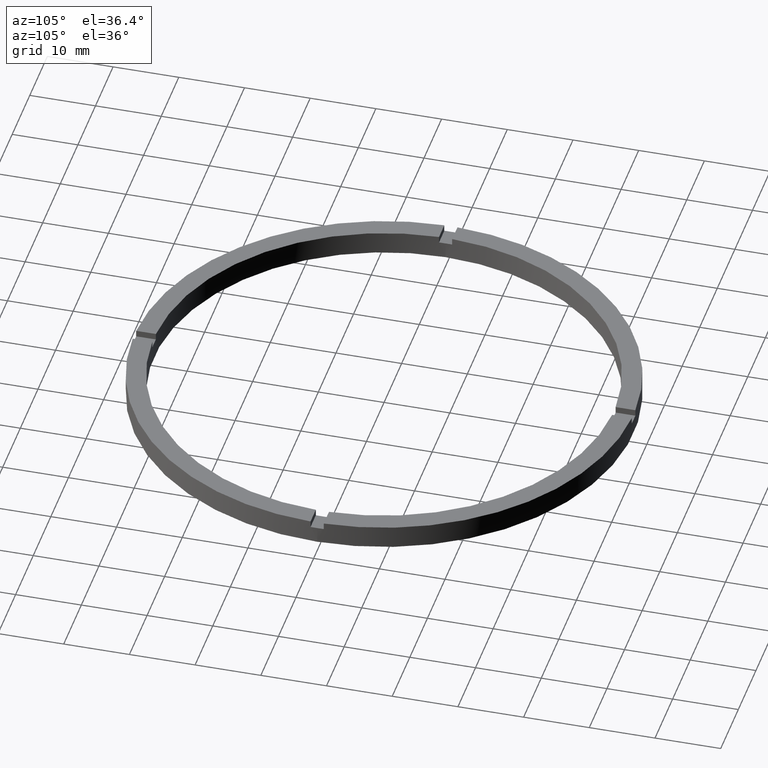
[diagram: clean part render]
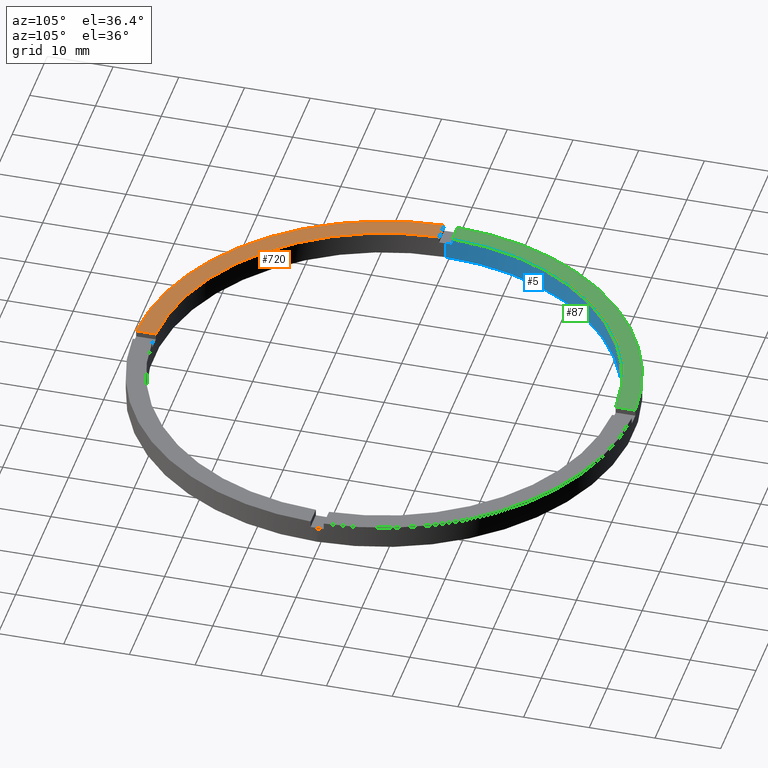
[diagram: same view with three faces highlighted in distinct colors, each labeled with its STEP entity id]
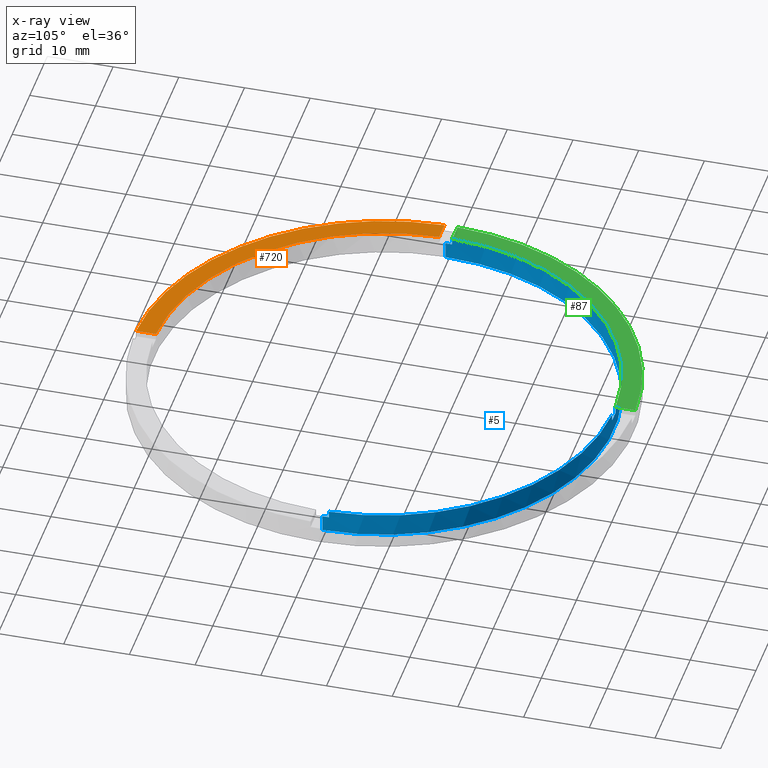
[diagram: x-ray of the same camera — body ghosted, the three highlighted faces saturated]
A machine part, auxiliary view with three faces highlighted in distinct colors.
The next image is the same camera in x-ray (body ghosted, the three faces saturated) — at least one of them is partly hidden behind the body in this view.
Their STEP definitions:

[orange] entity #720 — the highlighted planar face has unit normal (0, 0, 1).
#25 = DIRECTION ( 'NONE',  ( 1.000000000000000000, 0.000000000000000000, 0.000000000000000000 ) ) ;
#32 = DIRECTION ( 'NONE',  ( 0.000000000000000000, 0.000000000000000000, 1.000000000000000000 ) ) ;
#52 = LINE ( 'NONE', #386, #333 ) ;
#56 = CARTESIAN_POINT ( 'NONE',  ( 0.000000000000000000, 0.000000000000000000, 3.500000000000000000 ) ) ;
#83 = EDGE_CURVE ( 'NONE', #129, #465, #184, .T. ) ;
#104 = ORIENTED_EDGE ( 'NONE', *, *, #331, .F. ) ;
#118 = AXIS2_PLACEMENT_3D ( 'NONE', #771, #32, #25 ) ;
#129 = VERTEX_POINT ( 'NONE', #144 ) ;
#132 = VERTEX_POINT ( 'NONE', #296 ) ;
#138 = ORIENTED_EDGE ( 'NONE', *, *, #603, .F. ) ;
#144 = CARTESIAN_POINT ( 'NONE',  ( -34.98571136907180801, -1.000000000000027089, 3.500000000000000000 ) ) ;
#184 = CIRCLE ( 'NONE', #118, 35.00000000000000711 ) ;
#211 = DIRECTION ( 'NONE',  ( 1.000000000000000000, 1.951563910473907735E-16, -0.000000000000000000 ) ) ;
#238 = ORIENTED_EDGE ( 'NONE', *, *, #83, .F. ) ;
#295 = AXIS2_PLACEMENT_3D ( 'NONE', #313, #615, #555 ) ;
#296 = CARTESIAN_POINT ( 'NONE',  ( -1.000000000000159872, -37.98683982644514856, 3.500000000000000000 ) ) ;
#313 = CARTESIAN_POINT ( 'NONE',  ( 0.000000000000000000, 0.000000000000000000, 3.500000000000000000 ) ) ;
#331 = EDGE_CURVE ( 'NONE', #465, #132, #52, .T. ) ;
#333 = VECTOR ( 'NONE', #666, 1000.000000000000000 ) ;
#351 = FACE_OUTER_BOUND ( 'NONE', #468, .T. ) ;
#385 = DIRECTION ( 'NONE',  ( 1.000000000000000000, 0.000000000000000000, 0.000000000000000000 ) ) ;
#386 = CARTESIAN_POINT ( 'NONE',  ( -1.000000000000161204, -28.00000000000017764, 3.500000000000000000 ) ) ;
#400 = CARTESIAN_POINT ( 'NONE',  ( -37.98683982644515567, -1.000000000000027756, 3.500000000000000000 ) ) ;
#442 = EDGE_CURVE ( 'NONE', #718, #132, #554, .T. ) ;
#465 = VERTEX_POINT ( 'NONE', #516 ) ;
#468 = EDGE_LOOP ( 'NONE', ( #104, #238, #138, #502 ) ) ;
#498 = AXIS2_PLACEMENT_3D ( 'NONE', #56, #552, #385 ) ;
#502 = ORIENTED_EDGE ( 'NONE', *, *, #442, .T. ) ;
#503 = PLANE ( 'NONE',  #295 ) ;
#516 = CARTESIAN_POINT ( 'NONE',  ( -1.000000000000160316, -34.98571136907180090, 3.500000000000000000 ) ) ;
#552 = DIRECTION ( 'NONE',  ( 0.000000000000000000, 0.000000000000000000, 1.000000000000000000 ) ) ;
#554 = CIRCLE ( 'NONE', #498, 38.00000000000000000 ) ;
#555 = DIRECTION ( 'NONE',  ( 1.000000000000000000, 0.000000000000000000, -0.000000000000000000 ) ) ;
#603 = EDGE_CURVE ( 'NONE', #718, #129, #617, .T. ) ;
#615 = DIRECTION ( 'NONE',  ( 0.000000000000000000, 0.000000000000000000, 1.000000000000000000 ) ) ;
#617 = LINE ( 'NONE', #653, #620 ) ;
#620 = VECTOR ( 'NONE', #211, 1000.000000000000000 ) ;
#653 = CARTESIAN_POINT ( 'NONE',  ( -28.00000000000018474, -1.000000000000025757, 3.500000000000000000 ) ) ;
#666 = DIRECTION ( 'NONE',  ( 1.301042606982605074E-16, -1.000000000000000000, 0.000000000000000000 ) ) ;
#718 = VERTEX_POINT ( 'NONE', #400 ) ;
#720 = ADVANCED_FACE ( 'NONE', ( #351 ), #503, .T. ) ;
#771 = CARTESIAN_POINT ( 'NONE',  ( 0.000000000000000000, 0.000000000000000000, 3.500000000000000000 ) ) ;

[blue] entity #5 — the highlighted cylindrical surface (partial cylindrical patch) has radius 35 mm, axis along (-0, -0, -1).
#4 = CARTESIAN_POINT ( 'NONE',  ( 34.98571136907181511, 0.9999999999998423483, 3.500000000000000000 ) ) ;
#5 = ADVANCED_FACE ( 'NONE', ( #709 ), #191, .F. ) ;
#18 = CARTESIAN_POINT ( 'NONE',  ( -34.98571136907180801, 0.9999999999999729106, 3.500000000000000000 ) ) ;
#29 = LINE ( 'NONE', #305, #31 ) ;
#31 = VECTOR ( 'NONE', #265, 1000.000000000000000 ) ;
#34 = LINE ( 'NONE', #375, #582 ) ;
#67 = CIRCLE ( 'NONE', #164, 35.00000000000000711 ) ;
#69 = VECTOR ( 'NONE', #544, 1000.000000000000000 ) ;
#86 = LINE ( 'NONE', #648, #364 ) ;
#95 = VECTOR ( 'NONE', #289, 1000.000000000000000 ) ;
#98 = VERTEX_POINT ( 'NONE', #168 ) ;
#103 = CARTESIAN_POINT ( 'NONE',  ( 0.000000000000000000, 0.000000000000000000, 2.500000000000000000 ) ) ;
#106 = AXIS2_PLACEMENT_3D ( 'NONE', #103, #204, #583 ) ;
#112 = DIRECTION ( 'NONE',  ( 1.000000000000000000, 0.000000000000000000, 0.000000000000000000 ) ) ;
#114 = CARTESIAN_POINT ( 'NONE',  ( 35.00000000000000711, 4.286263797015737285E-15, 2.500000000000000000 ) ) ;
#115 = CARTESIAN_POINT ( 'NONE',  ( 34.98571136907181511, 0.9999999999998423483, 2.500000000000000000 ) ) ;
#126 = ORIENTED_EDGE ( 'NONE', *, *, #269, .F. ) ;
#128 = CARTESIAN_POINT ( 'NONE',  ( 0.000000000000000000, 0.000000000000000000, 3.500000000000000000 ) ) ;
#146 = VERTEX_POINT ( 'NONE', #114 ) ;
#150 = ORIENTED_EDGE ( 'NONE', *, *, #575, .F. ) ;
#152 = DIRECTION ( 'NONE',  ( 1.000000000000000000, 0.000000000000000000, 0.000000000000000000 ) ) ;
#159 = AXIS2_PLACEMENT_3D ( 'NONE', #128, #605, #307 ) ;
#164 = AXIS2_PLACEMENT_3D ( 'NONE', #493, #429, #538 ) ;
#168 = CARTESIAN_POINT ( 'NONE',  ( -1.000000000000025313, 34.98571136907180801, 3.500000000000000000 ) ) ;
#169 = DIRECTION ( 'NONE',  ( -0.000000000000000000, -0.000000000000000000, -1.000000000000000000 ) ) ;
#191 = CYLINDRICAL_SURFACE ( 'NONE', #332, 35.00000000000000711 ) ;
#204 = DIRECTION ( 'NONE',  ( 0.000000000000000000, 0.000000000000000000, 1.000000000000000000 ) ) ;
#220 = VERTEX_POINT ( 'NONE', #479 ) ;
#231 = EDGE_CURVE ( 'NONE', #146, #696, #316, .T. ) ;
#234 = CARTESIAN_POINT ( 'NONE',  ( 35.00000000000000711, 4.286263797015737285E-15, 3.500000000000000000 ) ) ;
#237 = DIRECTION ( 'NONE',  ( -0.000000000000000000, -0.000000000000000000, -1.000000000000000000 ) ) ;
#240 = VERTEX_POINT ( 'NONE', #581 ) ;
#242 = VERTEX_POINT ( 'NONE', #588 ) ;
#245 = VERTEX_POINT ( 'NONE', #18 ) ;
#251 = CARTESIAN_POINT ( 'NONE',  ( -34.98571136907180801, 0.9999999999999729106, 3.500000000000000000 ) ) ;
#253 = ORIENTED_EDGE ( 'NONE', *, *, #622, .F. ) ;
#264 = CARTESIAN_POINT ( 'NONE',  ( 0.9999999999999746869, 34.98571136907180801, 3.500000000000000000 ) ) ;
#265 = DIRECTION ( 'NONE',  ( -0.000000000000000000, -0.000000000000000000, -1.000000000000000000 ) ) ;
#269 = EDGE_CURVE ( 'NONE', #98, #672, #34, .T. ) ;
#275 = AXIS2_PLACEMENT_3D ( 'NONE', #562, #740, #390 ) ;
#280 = CARTESIAN_POINT ( 'NONE',  ( 0.000000000000000000, 0.000000000000000000, 3.500000000000000000 ) ) ;
#285 = EDGE_CURVE ( 'NONE', #638, #242, #29, .T. ) ;
#289 = DIRECTION ( 'NONE',  ( -0.000000000000000000, -0.000000000000000000, -1.000000000000000000 ) ) ;
#292 = CARTESIAN_POINT ( 'NONE',  ( 0.9999999999999746869, 34.98571136907180801, 2.500000000000000000 ) ) ;
#300 = EDGE_CURVE ( 'NONE', #770, #462, #306, .T. ) ;
#305 = CARTESIAN_POINT ( 'NONE',  ( -35.00000000000000711, 0.000000000000000000, 3.500000000000000000 ) ) ;
#306 = CIRCLE ( 'NONE', #275, 35.00000000000000711 ) ;
#307 = DIRECTION ( 'NONE',  ( 1.000000000000000000, 0.000000000000000000, 0.000000000000000000 ) ) ;
#310 = EDGE_CURVE ( 'NONE', #770, #696, #341, .T. ) ;
#311 = CARTESIAN_POINT ( 'NONE',  ( 34.98571136907181511, 0.9999999999998423483, 3.500000000000000000 ) ) ;
#315 = EDGE_CURVE ( 'NONE', #98, #245, #329, .T. ) ;
#316 = CIRCLE ( 'NONE', #344, 35.00000000000000711 ) ;
#324 = CARTESIAN_POINT ( 'NONE',  ( 0.000000000000000000, 0.000000000000000000, 2.500000000000000000 ) ) ;
#329 = CIRCLE ( 'NONE', #159, 35.00000000000000711 ) ;
#330 = DIRECTION ( 'NONE',  ( -1.000000000000000000, 0.000000000000000000, 0.000000000000000000 ) ) ;
#332 = AXIS2_PLACEMENT_3D ( 'NONE', #280, #237, #330 ) ;
#341 = LINE ( 'NONE', #4, #69 ) ;
#344 = AXIS2_PLACEMENT_3D ( 'NONE', #561, #629, #152 ) ;
#364 = VECTOR ( 'NONE', #531, 1000.000000000000000 ) ;
#368 = LINE ( 'NONE', #234, #95 ) ;
#371 = CIRCLE ( 'NONE', #106, 35.00000000000000711 ) ;
#375 = CARTESIAN_POINT ( 'NONE',  ( -1.000000000000025313, 34.98571136907180801, 3.500000000000000000 ) ) ;
#390 = DIRECTION ( 'NONE',  ( 1.000000000000000000, 0.000000000000000000, 0.000000000000000000 ) ) ;
#403 = DIRECTION ( 'NONE',  ( 0.000000000000000000, -0.000000000000000000, 1.000000000000000000 ) ) ;
#415 = EDGE_CURVE ( 'NONE', #701, #672, #550, .T. ) ;
#424 = ORIENTED_EDGE ( 'NONE', *, *, #593, .T. ) ;
#429 = DIRECTION ( 'NONE',  ( 0.000000000000000000, 0.000000000000000000, 1.000000000000000000 ) ) ;
#462 = VERTEX_POINT ( 'NONE', #264 ) ;
#479 = CARTESIAN_POINT ( 'NONE',  ( -34.98571136907180801, 0.9999999999999729106, 2.500000000000000000 ) ) ;
#493 = CARTESIAN_POINT ( 'NONE',  ( 0.000000000000000000, 0.000000000000000000, 0.000000000000000000 ) ) ;
#495 = ORIENTED_EDGE ( 'NONE', *, *, #285, .T. ) ;
#497 = ORIENTED_EDGE ( 'NONE', *, *, #681, .F. ) ;
#500 = ORIENTED_EDGE ( 'NONE', *, *, #300, .T. ) ;
#528 = CARTESIAN_POINT ( 'NONE',  ( -1.000000000000025313, 34.98571136907180801, 2.500000000000000000 ) ) ;
#531 = DIRECTION ( 'NONE',  ( 0.000000000000000000, 0.000000000000000000, 1.000000000000000000 ) ) ;
#538 = DIRECTION ( 'NONE',  ( 1.000000000000000000, 0.000000000000000000, 0.000000000000000000 ) ) ;
#544 = DIRECTION ( 'NONE',  ( -0.000000000000000000, -0.000000000000000000, -1.000000000000000000 ) ) ;
#545 = DIRECTION ( 'NONE',  ( 0.000000000000000000, 0.000000000000000000, 1.000000000000000000 ) ) ;
#550 = CIRCLE ( 'NONE', #774, 35.00000000000000711 ) ;
#561 = CARTESIAN_POINT ( 'NONE',  ( 0.000000000000000000, 0.000000000000000000, 2.500000000000000000 ) ) ;
#562 = CARTESIAN_POINT ( 'NONE',  ( 0.000000000000000000, 0.000000000000000000, 3.500000000000000000 ) ) ;
#575 = EDGE_CURVE ( 'NONE', #701, #462, #86, .T. ) ;
#579 = LINE ( 'NONE', #251, #587 ) ;
#581 = CARTESIAN_POINT ( 'NONE',  ( 35.00000000000000711, 4.286263797015737285E-15, 0.000000000000000000 ) ) ;
#582 = VECTOR ( 'NONE', #169, 1000.000000000000000 ) ;
#583 = DIRECTION ( 'NONE',  ( 1.000000000000000000, 0.000000000000000000, 0.000000000000000000 ) ) ;
#587 = VECTOR ( 'NONE', #545, 1000.000000000000000 ) ;
#588 = CARTESIAN_POINT ( 'NONE',  ( -35.00000000000000711, 0.000000000000000000, 0.000000000000000000 ) ) ;
#593 = EDGE_CURVE ( 'NONE', #220, #638, #371, .T. ) ;
#605 = DIRECTION ( 'NONE',  ( 0.000000000000000000, 0.000000000000000000, 1.000000000000000000 ) ) ;
#622 = EDGE_CURVE ( 'NONE', #146, #240, #368, .T. ) ;
#629 = DIRECTION ( 'NONE',  ( 0.000000000000000000, 0.000000000000000000, 1.000000000000000000 ) ) ;
#638 = VERTEX_POINT ( 'NONE', #762 ) ;
#648 = CARTESIAN_POINT ( 'NONE',  ( 0.9999999999999746869, 34.98571136907180801, 3.500000000000000000 ) ) ;
#658 = ORIENTED_EDGE ( 'NONE', *, *, #415, .T. ) ;
#672 = VERTEX_POINT ( 'NONE', #528 ) ;
#681 = EDGE_CURVE ( 'NONE', #240, #242, #67, .T. ) ;
#696 = VERTEX_POINT ( 'NONE', #115 ) ;
#701 = VERTEX_POINT ( 'NONE', #292 ) ;
#709 = FACE_OUTER_BOUND ( 'NONE', #761, .T. ) ;
#712 = EDGE_CURVE ( 'NONE', #220, #245, #579, .T. ) ;
#740 = DIRECTION ( 'NONE',  ( 0.000000000000000000, 0.000000000000000000, 1.000000000000000000 ) ) ;
#745 = ORIENTED_EDGE ( 'NONE', *, *, #712, .F. ) ;
#747 = ORIENTED_EDGE ( 'NONE', *, *, #231, .T. ) ;
#748 = ORIENTED_EDGE ( 'NONE', *, *, #310, .F. ) ;
#754 = ORIENTED_EDGE ( 'NONE', *, *, #315, .T. ) ;
#761 = EDGE_LOOP ( 'NONE', ( #253, #747, #748, #500, #150, #658, #126, #754, #745, #424, #495, #497 ) ) ;
#762 = CARTESIAN_POINT ( 'NONE',  ( -35.00000000000000711, 0.000000000000000000, 2.500000000000000000 ) ) ;
#770 = VERTEX_POINT ( 'NONE', #311 ) ;
#774 = AXIS2_PLACEMENT_3D ( 'NONE', #324, #403, #112 ) ;

[green] entity #87 — the highlighted planar face has unit normal (0, 0, 1).
#1 = CARTESIAN_POINT ( 'NONE',  ( -28.00000000000018474, 0.9999999999999742428, 3.500000000000000000 ) ) ;
#11 = VECTOR ( 'NONE', #24, 1000.000000000000000 ) ;
#12 = DIRECTION ( 'NONE',  ( 0.000000000000000000, 0.000000000000000000, 1.000000000000000000 ) ) ;
#18 = CARTESIAN_POINT ( 'NONE',  ( -34.98571136907180801, 0.9999999999999729106, 3.500000000000000000 ) ) ;
#24 = DIRECTION ( 'NONE',  ( -0.000000000000000000, -1.000000000000000000, -0.000000000000000000 ) ) ;
#87 = ADVANCED_FACE ( 'NONE', ( #707 ), #381, .T. ) ;
#98 = VERTEX_POINT ( 'NONE', #168 ) ;
#124 = AXIS2_PLACEMENT_3D ( 'NONE', #621, #12, #270 ) ;
#128 = CARTESIAN_POINT ( 'NONE',  ( 0.000000000000000000, 0.000000000000000000, 3.500000000000000000 ) ) ;
#159 = AXIS2_PLACEMENT_3D ( 'NONE', #128, #605, #307 ) ;
#168 = CARTESIAN_POINT ( 'NONE',  ( -1.000000000000025313, 34.98571136907180801, 3.500000000000000000 ) ) ;
#194 = CARTESIAN_POINT ( 'NONE',  ( -37.98683982644515567, 0.9999999999999722444, 3.500000000000000000 ) ) ;
#235 = ORIENTED_EDGE ( 'NONE', *, *, #540, .F. ) ;
#245 = VERTEX_POINT ( 'NONE', #18 ) ;
#270 = DIRECTION ( 'NONE',  ( 1.000000000000000000, 0.000000000000000000, 0.000000000000000000 ) ) ;
#271 = EDGE_CURVE ( 'NONE', #245, #454, #323, .T. ) ;
#307 = DIRECTION ( 'NONE',  ( 1.000000000000000000, 0.000000000000000000, 0.000000000000000000 ) ) ;
#315 = EDGE_CURVE ( 'NONE', #98, #245, #329, .T. ) ;
#323 = LINE ( 'NONE', #1, #585 ) ;
#329 = CIRCLE ( 'NONE', #159, 35.00000000000000711 ) ;
#374 = DIRECTION ( 'NONE',  ( 1.000000000000000000, 0.000000000000000000, -0.000000000000000000 ) ) ;
#377 = EDGE_CURVE ( 'NONE', #417, #454, #592, .T. ) ;
#381 = PLANE ( 'NONE',  #573 ) ;
#414 = ORIENTED_EDGE ( 'NONE', *, *, #271, .F. ) ;
#417 = VERTEX_POINT ( 'NONE', #775 ) ;
#454 = VERTEX_POINT ( 'NONE', #194 ) ;
#540 = EDGE_CURVE ( 'NONE', #417, #98, #542, .T. ) ;
#542 = LINE ( 'NONE', #755, #11 ) ;
#557 = DIRECTION ( 'NONE',  ( -1.000000000000000000, -1.951563910473907735E-16, 0.000000000000000000 ) ) ;
#573 = AXIS2_PLACEMENT_3D ( 'NONE', #717, #783, #374 ) ;
#585 = VECTOR ( 'NONE', #557, 1000.000000000000000 ) ;
#592 = CIRCLE ( 'NONE', #124, 38.00000000000000000 ) ;
#605 = DIRECTION ( 'NONE',  ( 0.000000000000000000, 0.000000000000000000, 1.000000000000000000 ) ) ;
#621 = CARTESIAN_POINT ( 'NONE',  ( 0.000000000000000000, 0.000000000000000000, 3.500000000000000000 ) ) ;
#627 = ORIENTED_EDGE ( 'NONE', *, *, #315, .F. ) ;
#707 = FACE_OUTER_BOUND ( 'NONE', #739, .T. ) ;
#717 = CARTESIAN_POINT ( 'NONE',  ( 0.000000000000000000, 0.000000000000000000, 3.500000000000000000 ) ) ;
#735 = ORIENTED_EDGE ( 'NONE', *, *, #377, .T. ) ;
#739 = EDGE_LOOP ( 'NONE', ( #235, #735, #414, #627 ) ) ;
#755 = CARTESIAN_POINT ( 'NONE',  ( -1.000000000000025313, 27.99999999999999645, 3.500000000000000000 ) ) ;
#775 = CARTESIAN_POINT ( 'NONE',  ( -1.000000000000025313, 37.98683982644515567, 3.500000000000000000 ) ) ;
#783 = DIRECTION ( 'NONE',  ( 0.000000000000000000, 0.000000000000000000, 1.000000000000000000 ) ) ;